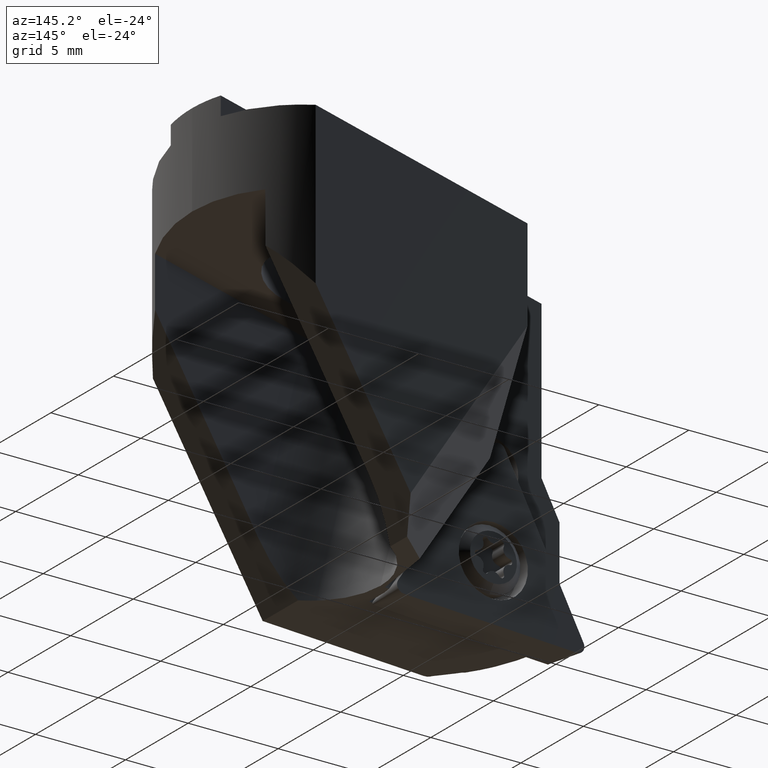
[diagram: clean part render]
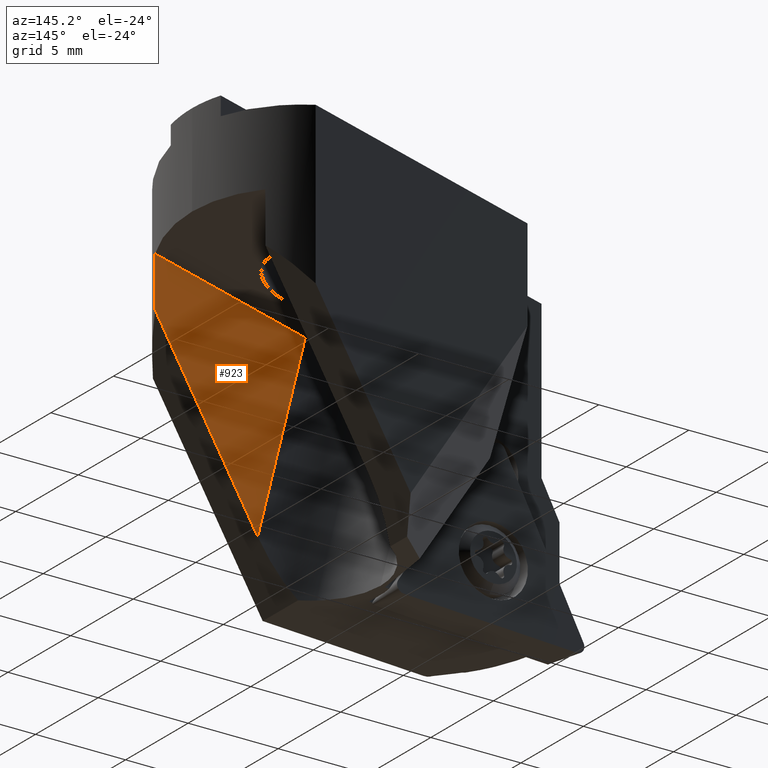
[diagram: same view with one face highlighted and labeled with its STEP entity id]
A machine part, auxiliary view. The second image highlights one B-rep face of the part: STEP entity #923.
In plain terms, the highlighted planar face has unit normal (-0, -1, -0).
Its self-contained STEP definition (entity closure, byte-faithful):
#587=EDGE_CURVE('NONE',#1343,#1287,#1691,.T.);
#659=EDGE_CURVE('NONE',#1287,#1595,#1768,.F.);
#871=EDGE_CURVE('NONE',#1595,#913,#2006,.F.);
#913=VERTEX_POINT('NONE',#2053);
#923=ADVANCED_FACE('NONE',(#2065),#2066,.F.);
#963=EDGE_CURVE('NONE',#913,#1343,#2112,.F.);
#1287=VERTEX_POINT('NONE',#2469);
#1343=VERTEX_POINT('NONE',#2532);
#1595=VERTEX_POINT('NONE',#2803);
#1691=LINE('',#2898,#2899);
#1768=LINE('',#3018,#3019);
#2006=LINE('',#3333,#3334);
#2053=CARTESIAN_POINT('',(0.862494933378194,-4.4,-7.48116963654831));
#2065=FACE_OUTER_BOUND('',#3414,.T.);
#2066=PLANE('',#3415);
#2112=LINE('',#3475,#3476);
#2469=CARTESIAN_POINT('',(9.20217365626187,-4.4,-8.19828592448512));
#2532=CARTESIAN_POINT('',(9.20217365626187,-4.4,-5.40185419621802));
#2803=CARTESIAN_POINT('',(3.5026321058205,-4.4,-18.0701814696995));
#2898=CARTESIAN_POINT('',(9.20217365626187,-4.4,-25.0));
#2899=VECTOR('',#4916,1.0);
#3018=CARTESIAN_POINT('',(5.9267648972793,-4.4,-13.871460310599));
#3019=VECTOR('',#4990,1.0);
#3333=CARTESIAN_POINT('',(4.74637904179593,-4.4,-23.0585779666535));
#3334=VECTOR('',#5317,0.999999999999999);
#3414=EDGE_LOOP('',(#5421,#5422,#5423,#5424));
#3415=AXIS2_PLACEMENT_3D('',#5425,#5426,#5427);
#3475=CARTESIAN_POINT('',(2.06566163396044,-4.4,-7.18118648600473));
#3476=VECTOR('',#5499,1.0);
#4916=DIRECTION('',(-1.22464679914735E-016,0.0,-1.0));
#4990=DIRECTION('',(0.5,-2.42951649802219E-016,0.866025403784439));
#5317=DIRECTION('',(0.241921895599661,0.0,-0.970295726275998));
#5421=ORIENTED_EDGE('',*,*,#659,.T.);
#5422=ORIENTED_EDGE('',*,*,#871,.T.);
#5423=ORIENTED_EDGE('',*,*,#963,.T.);
#5424=ORIENTED_EDGE('',*,*,#587,.T.);
#5425=CARTESIAN_POINT('',(4.74637904179593,-4.4,-23.0585779666535));
#5426=DIRECTION('',(-3.39353785284464E-016,-1.0,-8.46104015422463E-017));
#5427=DIRECTION('',(-1.0,3.39353785284464E-016,1.22464679914735E-016));
#5499=DIRECTION('',(-0.970295726275998,3.49742636285647E-016,-0.241921895599661));